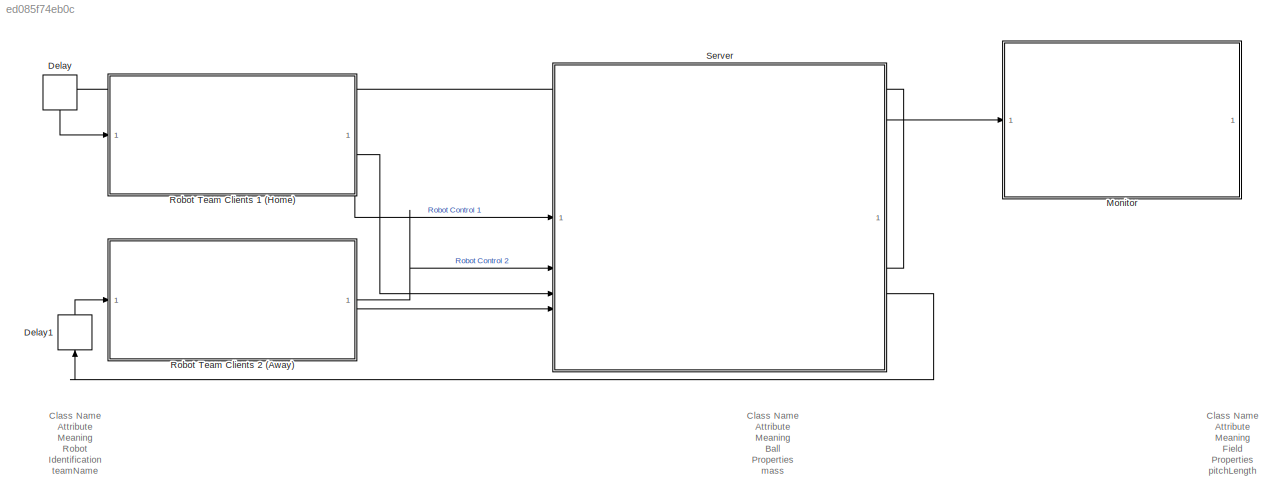
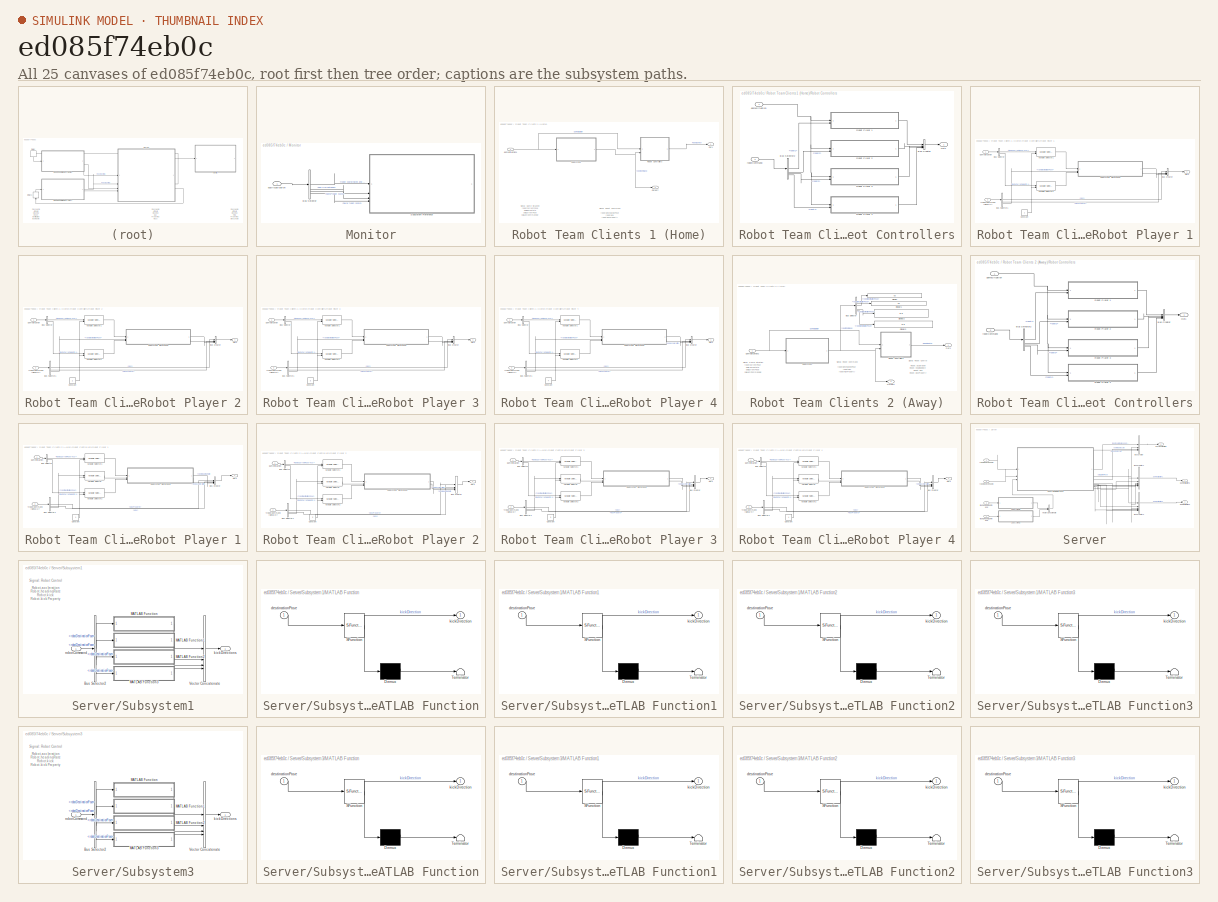
[diagram: thumbnail index - all 25 canvases of the model, root first then tree order]
MODEL slx_ed085f74eb0c
KIND model
CONFIG AbsTol = auto
CONFIG EnableMultiTasking = off
CONFIG FixedStep = 0.5
CONFIG MaxStep = auto
CONFIG MinStep = auto
CONFIG RelTol = 1e-3
CONFIG SampleTimeConstraint = Unconstrained
CONFIG SolverName = FixedStepAuto
CONFIG StartTime = 0.0
CONFIG StopTime = inf
BLOCK [Delay] Delay
  DelayLength = 1
  InputPortMap = u0
  NameLocation = left
BLOCK [Delay] Delay1
  DelayLength = 1
  InputPortMap = u0
  NameLocation = right
BLOCK [SubSystem] Monitor
BLOCK [BusSelector] Monitor/Bus Selector
  OutputSignals = robot coordinates and heading,ballCurrentPose,home team score,away team score
BLOCK [SubSystem] Monitor/Subsystem Reference
  ReferencedSubsystem = Monitor_Subsystem
BLOCK [Inport] Monitor/busVisualisation
BLOCK [SubSystem] Robot Team Clients 1 (Home)
BLOCK [Outport] Robot Team Clients 1 (Home)/Out1
BLOCK [Outport] Robot Team Clients 1 (Home)/Outport
  Port = 2
BLOCK [SubSystem] Robot Team Clients 1 (Home)/Robot Controllers
BLOCK [BusCreator] Robot Team Clients 1 (Home)/Robot Controllers/Bus Creator
  DisplayOption = bar
  InheritFromInputs = on
  Inputs = 4
BLOCK [BusSelector] Robot Team Clients 1 (Home)/Robot Controllers/Bus Selector2
  OutputSignals = robot1,robot2,robot3,robot4
BLOCK [Outport] Robot Team Clients 1 (Home)/Robot Controllers/Out1
BLOCK [SubSystem] Robot Team Clients 1 (Home)/Robot Controllers/Robot Player 1
BLOCK [Inport] Robot Team Clients 1 (Home)/Robot Controllers/Robot Player 1/<robotCommand (signal 1)>
  Port = 2
BLOCK [BusCreator] Robot Team Clients 1 (Home)/Robot Controllers/Robot Player 1/Bus Creator
  DisplayOption = bar
  InheritFromInputs = on
  Inputs = 4
  OutDataTypeStr = Bus: robotControl
BLOCK [BusSelector] Robot Team Clients 1 (Home)/Robot Controllers/Robot Player 1/Bus Selector
  OutputSignals = team1CurrentPose(4x3),team1CurrentVelocity(4x1)
BLOCK [BusSelector] Robot Team Clients 1 (Home)/Robot Controllers/Robot Player 1/Bus Selector1
  OutputSignals = kick,kickProperty,robotDestinationPose
BLOCK [Constant] Robot Team Clients 1 (Home)/Robot Controllers/Robot Player 1/Constant
BLOCK [Outport] Robot Team Clients 1 (Home)/Robot Controllers/Robot Player 1/Out1
BLOCK [SubSystem] Robot Team Clients 1 (Home)/Robot Controllers/Robot Player 1/Subsystem Reference
  ReferencedSubsystem = Controller_Subsystem
BLOCK [Reference] Robot Team Clients 1 (Home)/Robot Controllers/Robot Player 1/Variable Selector1  REF=dspindex/Variable
Selector
  LibrarySourceBlock = dsphdlsupportsigmgmt/Variable\nSelector
  SourceBlock = dspindex/Variable\nSelector
  SourceType = Variable Selector
BLOCK [Reference] Robot Team Clients 1 (Home)/Robot Controllers/Robot Player 1/Variable Selector2  REF=dspindex/Variable
Selector
  LibrarySourceBlock = dsphdlsupportsigmgmt/Variable\nSelector
  SourceBlock = dspindex/Variable\nSelector
  SourceType = Variable Selector
BLOCK [Inport] Robot Team Clients 1 (Home)/Robot Controllers/Robot Player 1/gameSituation
BLOCK [SubSystem] Robot Team Clients 1 (Home)/Robot Controllers/Robot Player 2
BLOCK [Inport] Robot Team Clients 1 (Home)/Robot Controllers/Robot Player 2/<robotCommand (signal 2)>
  Port = 2
BLOCK [BusCreator] Robot Team Clients 1 (Home)/Robot Controllers/Robot Player 2/Bus Creator
  DisplayOption = bar
  InheritFromInputs = on
  Inputs = 4
  OutDataTypeStr = Bus: robotControl
BLOCK [BusSelector] Robot Team Clients 1 (Home)/Robot Controllers/Robot Player 2/Bus Selector
  OutputSignals = team1CurrentPose(4x3),team1CurrentVelocity(4x1)
BLOCK [BusSelector] Robot Team Clients 1 (Home)/Robot Controllers/Robot Player 2/Bus Selector1
  OutputSignals = kick,kickProperty,robotDestinationPose
BLOCK [Constant] Robot Team Clients 1 (Home)/Robot Controllers/Robot Player 2/Constant
  Value = 2
BLOCK [Outport] Robot Team Clients 1 (Home)/Robot Controllers/Robot Player 2/Out1
BLOCK [SubSystem] Robot Team Clients 1 (Home)/Robot Controllers/Robot Player 2/Subsystem Reference
  ReferencedSubsystem = Controller_Subsystem
BLOCK [Reference] Robot Team Clients 1 (Home)/Robot Controllers/Robot Player 2/Variable Selector1  REF=dspindex/Variable
Selector
  LibrarySourceBlock = dsphdlsupportsigmgmt/Variable\nSelector
  SourceBlock = dspindex/Variable\nSelector
  SourceType = Variable Selector
BLOCK [Reference] Robot Team Clients 1 (Home)/Robot Controllers/Robot Player 2/Variable Selector2  REF=dspindex/Variable
Selector
  LibrarySourceBlock = dsphdlsupportsigmgmt/Variable\nSelector
  SourceBlock = dspindex/Variable\nSelector
  SourceType = Variable Selector
BLOCK [Inport] Robot Team Clients 1 (Home)/Robot Controllers/Robot Player 2/gameSituation
BLOCK [SubSystem] Robot Team Clients 1 (Home)/Robot Controllers/Robot Player 3
BLOCK [Inport] Robot Team Clients 1 (Home)/Robot Controllers/Robot Player 3/<robotCommand (signal 3)>
  Port = 2
BLOCK [BusCreator] Robot Team Clients 1 (Home)/Robot Controllers/Robot Player 3/Bus Creator
  DisplayOption = bar
  InheritFromInputs = on
  Inputs = 4
  OutDataTypeStr = Bus: robotControl
BLOCK [BusSelector] Robot Team Clients 1 (Home)/Robot Controllers/Robot Player 3/Bus Selector
  OutputSignals = team1CurrentPose(4x3),team1CurrentVelocity(4x1)
BLOCK [BusSelector] Robot Team Clients 1 (Home)/Robot Controllers/Robot Player 3/Bus Selector1
  OutputSignals = kick,kickProperty,robotDestinationPose
BLOCK [Constant] Robot Team Clients 1 (Home)/Robot Controllers/Robot Player 3/Constant
  Value = 3
BLOCK [Outport] Robot Team Clients 1 (Home)/Robot Controllers/Robot Player 3/Out1
BLOCK [SubSystem] Robot Team Clients 1 (Home)/Robot Controllers/Robot Player 3/Subsystem Reference
  ReferencedSubsystem = Controller_Subsystem
BLOCK [Reference] Robot Team Clients 1 (Home)/Robot Controllers/Robot Player 3/Variable Selector1  REF=dspindex/Variable
Selector
  LibrarySourceBlock = dsphdlsupportsigmgmt/Variable\nSelector
  SourceBlock = dspindex/Variable\nSelector
  SourceType = Variable Selector
BLOCK [Reference] Robot Team Clients 1 (Home)/Robot Controllers/Robot Player 3/Variable Selector2  REF=dspindex/Variable
Selector
  LibrarySourceBlock = dsphdlsupportsigmgmt/Variable\nSelector
  SourceBlock = dspindex/Variable\nSelector
  SourceType = Variable Selector
BLOCK [Inport] Robot Team Clients 1 (Home)/Robot Controllers/Robot Player 3/gameSituation
BLOCK [SubSystem] Robot Team Clients 1 (Home)/Robot Controllers/Robot Player 4
BLOCK [Inport] Robot Team Clients 1 (Home)/Robot Controllers/Robot Player 4/<robotCommand (signal 4)>
  Port = 2
BLOCK [BusCreator] Robot Team Clients 1 (Home)/Robot Controllers/Robot Player 4/Bus Creator
  DisplayOption = bar
  InheritFromInputs = on
  Inputs = 4
  OutDataTypeStr = Bus: robotControl
BLOCK [BusSelector] Robot Team Clients 1 (Home)/Robot Controllers/Robot Player 4/Bus Selector
  OutputSignals = team1CurrentPose(4x3),team1CurrentVelocity(4x1)
BLOCK [BusSelector] Robot Team Clients 1 (Home)/Robot Controllers/Robot Player 4/Bus Selector1
  OutputSignals = kick,kickProperty,robotDestinationPose
BLOCK [Constant] Robot Team Clients 1 (Home)/Robot Controllers/Robot Player 4/Constant
  Value = 4
BLOCK [Outport] Robot Team Clients 1 (Home)/Robot Controllers/Robot Player 4/Out1
BLOCK [SubSystem] Robot Team Clients 1 (Home)/Robot Controllers/Robot Player 4/Subsystem Reference
  ReferencedSubsystem = Controller_Subsystem
BLOCK [Reference] Robot Team Clients 1 (Home)/Robot Controllers/Robot Player 4/Variable Selector1  REF=dspindex/Variable
Selector
  LibrarySourceBlock = dsphdlsupportsigmgmt/Variable\nSelector
  SourceBlock = dspindex/Variable\nSelector
  SourceType = Variable Selector
BLOCK [Reference] Robot Team Clients 1 (Home)/Robot Controllers/Robot Player 4/Variable Selector2  REF=dspindex/Variable
Selector
  LibrarySourceBlock = dsphdlsupportsigmgmt/Variable\nSelector
  SourceBlock = dspindex/Variable\nSelector
  SourceType = Variable Selector
BLOCK [Inport] Robot Team Clients 1 (Home)/Robot Controllers/Robot Player 4/gameSituation
BLOCK [Inport] Robot Team Clients 1 (Home)/Robot Controllers/gameSituation
BLOCK [Inport] Robot Team Clients 1 (Home)/Robot Controllers/robotCommand
  Port = 2
BLOCK [SubSystem] Robot Team Clients 1 (Home)/Subsystem
  ReferencedSubsystem = Guidance_Team1
BLOCK [Inport] Robot Team Clients 1 (Home)/gameSituation1
  OutDataTypeStr = Bus: gameSituation
BLOCK [SubSystem] Robot Team Clients 2 (Away)
BLOCK [BusSelector] Robot Team Clients 2 (Away)/Bus Selector
  OutputSignals = robot1.robotDestinationPose,robot2.robotDestinationPose,robot3.robotDestinationPose,robot4.robotDestinationPose
BLOCK [Display] Robot Team Clients 2 (Away)/Display
  Decimation = 1
BLOCK [Display] Robot Team Clients 2 (Away)/Display1
  Decimation = 1
BLOCK [Display] Robot Team Clients 2 (Away)/Display2
  Decimation = 1
BLOCK [Display] Robot Team Clients 2 (Away)/Display3
  Decimation = 1
BLOCK [Outport] Robot Team Clients 2 (Away)/Out1
BLOCK [Outport] Robot Team Clients 2 (Away)/Outport
  Port = 2
BLOCK [SubSystem] Robot Team Clients 2 (Away)/Robot Controllers
BLOCK [BusCreator] Robot Team Clients 2 (Away)/Robot Controllers/Bus Creator
  DisplayOption = bar
  InheritFromInputs = on
  Inputs = 4
BLOCK [BusSelector] Robot Team Clients 2 (Away)/Robot Controllers/Bus Selector2
  OutputSignals = robot1,robot2,robot3,robot4
BLOCK [Outport] Robot Team Clients 2 (Away)/Robot Controllers/Out1
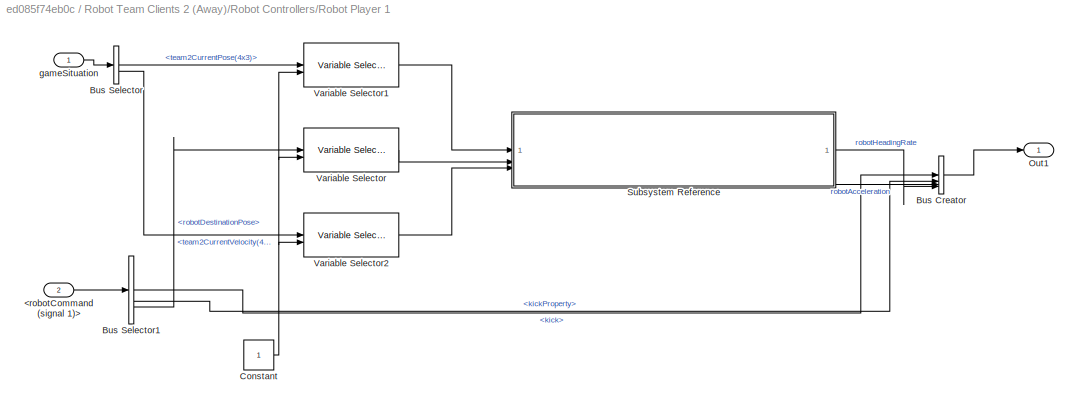
BLOCK [SubSystem] Robot Team Clients 2 (Away)/Robot Controllers/Robot Player 1
BLOCK [Inport] Robot Team Clients 2 (Away)/Robot Controllers/Robot Player 1/<robotCommand (signal 1)>
  Port = 2
BLOCK [BusCreator] Robot Team Clients 2 (Away)/Robot Controllers/Robot Player 1/Bus Creator
  DisplayOption = bar
  InheritFromInputs = on
  Inputs = 4
  OutDataTypeStr = Bus: robotControl
BLOCK [BusSelector] Robot Team Clients 2 (Away)/Robot Controllers/Robot Player 1/Bus Selector
  OutputSignals = team2CurrentPose(4x3),team2CurrentVelocity(4x1)
BLOCK [BusSelector] Robot Team Clients 2 (Away)/Robot Controllers/Robot Player 1/Bus Selector1
  OutputSignals = kick,kickProperty,robotDestinationPose
BLOCK [Constant] Robot Team Clients 2 (Away)/Robot Controllers/Robot Player 1/Constant
BLOCK [Outport] Robot Team Clients 2 (Away)/Robot Controllers/Robot Player 1/Out1
BLOCK [SubSystem] Robot Team Clients 2 (Away)/Robot Controllers/Robot Player 1/Subsystem Reference
  ReferencedSubsystem = Controller_Subsystem
BLOCK [Reference] Robot Team Clients 2 (Away)/Robot Controllers/Robot Player 1/Variable Selector  REF=dspindex/Variable
Selector
  LibrarySourceBlock = dsphdlsupportsigmgmt/Variable\nSelector
  SourceBlock = dspindex/Variable\nSelector
  SourceType = Variable Selector
BLOCK [Reference] Robot Team Clients 2 (Away)/Robot Controllers/Robot Player 1/Variable Selector1  REF=dspindex/Variable
Selector
  LibrarySourceBlock = dsphdlsupportsigmgmt/Variable\nSelector
  SourceBlock = dspindex/Variable\nSelector
  SourceType = Variable Selector
BLOCK [Reference] Robot Team Clients 2 (Away)/Robot Controllers/Robot Player 1/Variable Selector2  REF=dspindex/Variable
Selector
  LibrarySourceBlock = dsphdlsupportsigmgmt/Variable\nSelector
  SourceBlock = dspindex/Variable\nSelector
  SourceType = Variable Selector
BLOCK [Inport] Robot Team Clients 2 (Away)/Robot Controllers/Robot Player 1/gameSituation
BLOCK [SubSystem] Robot Team Clients 2 (Away)/Robot Controllers/Robot Player 2
BLOCK [Inport] Robot Team Clients 2 (Away)/Robot Controllers/Robot Player 2/<robotCommand (signal 2)>
  Port = 2
BLOCK [BusCreator] Robot Team Clients 2 (Away)/Robot Controllers/Robot Player 2/Bus Creator
  DisplayOption = bar
  InheritFromInputs = on
  Inputs = 4
  OutDataTypeStr = Bus: robotControl
BLOCK [BusSelector] Robot Team Clients 2 (Away)/Robot Controllers/Robot Player 2/Bus Selector
  OutputSignals = team2CurrentPose(4x3),team2CurrentVelocity(4x1)
BLOCK [BusSelector] Robot Team Clients 2 (Away)/Robot Controllers/Robot Player 2/Bus Selector1
  OutputSignals = kick,kickProperty,robotDestinationPose
BLOCK [Constant] Robot Team Clients 2 (Away)/Robot Controllers/Robot Player 2/Constant
  Value = 2
BLOCK [Outport] Robot Team Clients 2 (Away)/Robot Controllers/Robot Player 2/Out1
BLOCK [SubSystem] Robot Team Clients 2 (Away)/Robot Controllers/Robot Player 2/Subsystem Reference
  ReferencedSubsystem = Controller_Subsystem
BLOCK [Reference] Robot Team Clients 2 (Away)/Robot Controllers/Robot Player 2/Variable Selector  REF=dspindex/Variable
Selector
  LibrarySourceBlock = dsphdlsupportsigmgmt/Variable\nSelector
  SourceBlock = dspindex/Variable\nSelector
  SourceType = Variable Selector
BLOCK [Reference] Robot Team Clients 2 (Away)/Robot Controllers/Robot Player 2/Variable Selector1  REF=dspindex/Variable
Selector
  LibrarySourceBlock = dsphdlsupportsigmgmt/Variable\nSelector
  SourceBlock = dspindex/Variable\nSelector
  SourceType = Variable Selector
BLOCK [Reference] Robot Team Clients 2 (Away)/Robot Controllers/Robot Player 2/Variable Selector2  REF=dspindex/Variable
Selector
  LibrarySourceBlock = dsphdlsupportsigmgmt/Variable\nSelector
  SourceBlock = dspindex/Variable\nSelector
  SourceType = Variable Selector
BLOCK [Inport] Robot Team Clients 2 (Away)/Robot Controllers/Robot Player 2/gameSituation
BLOCK [SubSystem] Robot Team Clients 2 (Away)/Robot Controllers/Robot Player 3
BLOCK [Inport] Robot Team Clients 2 (Away)/Robot Controllers/Robot Player 3/<robotCommand (signal 3)>
  Port = 2
BLOCK [BusCreator] Robot Team Clients 2 (Away)/Robot Controllers/Robot Player 3/Bus Creator
  DisplayOption = bar
  InheritFromInputs = on
  Inputs = 4
  OutDataTypeStr = Bus: robotControl
BLOCK [BusSelector] Robot Team Clients 2 (Away)/Robot Controllers/Robot Player 3/Bus Selector
  OutputSignals = team2CurrentPose(4x3),team2CurrentVelocity(4x1)
BLOCK [BusSelector] Robot Team Clients 2 (Away)/Robot Controllers/Robot Player 3/Bus Selector1
  OutputSignals = kick,kickProperty,robotDestinationPose
BLOCK [Constant] Robot Team Clients 2 (Away)/Robot Controllers/Robot Player 3/Constant
  Value = 3
BLOCK [Outport] Robot Team Clients 2 (Away)/Robot Controllers/Robot Player 3/Out1
BLOCK [SubSystem] Robot Team Clients 2 (Away)/Robot Controllers/Robot Player 3/Subsystem Reference
  ReferencedSubsystem = Controller_Subsystem
BLOCK [Reference] Robot Team Clients 2 (Away)/Robot Controllers/Robot Player 3/Variable Selector  REF=dspindex/Variable
Selector
  LibrarySourceBlock = dsphdlsupportsigmgmt/Variable\nSelector
  SourceBlock = dspindex/Variable\nSelector
  SourceType = Variable Selector
BLOCK [Reference] Robot Team Clients 2 (Away)/Robot Controllers/Robot Player 3/Variable Selector1  REF=dspindex/Variable
Selector
  LibrarySourceBlock = dsphdlsupportsigmgmt/Variable\nSelector
  SourceBlock = dspindex/Variable\nSelector
  SourceType = Variable Selector
BLOCK [Reference] Robot Team Clients 2 (Away)/Robot Controllers/Robot Player 3/Variable Selector2  REF=dspindex/Variable
Selector
  LibrarySourceBlock = dsphdlsupportsigmgmt/Variable\nSelector
  SourceBlock = dspindex/Variable\nSelector
  SourceType = Variable Selector
BLOCK [Inport] Robot Team Clients 2 (Away)/Robot Controllers/Robot Player 3/gameSituation
BLOCK [SubSystem] Robot Team Clients 2 (Away)/Robot Controllers/Robot Player 4
BLOCK [Inport] Robot Team Clients 2 (Away)/Robot Controllers/Robot Player 4/<robotCommand (signal 4)>
  Port = 2
BLOCK [BusCreator] Robot Team Clients 2 (Away)/Robot Controllers/Robot Player 4/Bus Creator
  DisplayOption = bar
  InheritFromInputs = on
  Inputs = 4
  OutDataTypeStr = Bus: robotControl
BLOCK [BusSelector] Robot Team Clients 2 (Away)/Robot Controllers/Robot Player 4/Bus Selector
  OutputSignals = team2CurrentPose(4x3),team2CurrentVelocity(4x1)
BLOCK [BusSelector] Robot Team Clients 2 (Away)/Robot Controllers/Robot Player 4/Bus Selector1
  OutputSignals = kick,kickProperty,robotDestinationPose
BLOCK [Constant] Robot Team Clients 2 (Away)/Robot Controllers/Robot Player 4/Constant
  Value = 4
BLOCK [Outport] Robot Team Clients 2 (Away)/Robot Controllers/Robot Player 4/Out1
BLOCK [SubSystem] Robot Team Clients 2 (Away)/Robot Controllers/Robot Player 4/Subsystem Reference
  ReferencedSubsystem = Controller_Subsystem
BLOCK [Reference] Robot Team Clients 2 (Away)/Robot Controllers/Robot Player 4/Variable Selector  REF=dspindex/Variable
Selector
  LibrarySourceBlock = dsphdlsupportsigmgmt/Variable\nSelector
  SourceBlock = dspindex/Variable\nSelector
  SourceType = Variable Selector
BLOCK [Reference] Robot Team Clients 2 (Away)/Robot Controllers/Robot Player 4/Variable Selector1  REF=dspindex/Variable
Selector
  LibrarySourceBlock = dsphdlsupportsigmgmt/Variable\nSelector
  SourceBlock = dspindex/Variable\nSelector
  SourceType = Variable Selector
BLOCK [Reference] Robot Team Clients 2 (Away)/Robot Controllers/Robot Player 4/Variable Selector2  REF=dspindex/Variable
Selector
  LibrarySourceBlock = dsphdlsupportsigmgmt/Variable\nSelector
  SourceBlock = dspindex/Variable\nSelector
  SourceType = Variable Selector
BLOCK [Inport] Robot Team Clients 2 (Away)/Robot Controllers/Robot Player 4/gameSituation
BLOCK [Inport] Robot Team Clients 2 (Away)/Robot Controllers/gameSituation
BLOCK [Inport] Robot Team Clients 2 (Away)/Robot Controllers/robotCommand
  Port = 2
BLOCK [SubSystem] Robot Team Clients 2 (Away)/Subsystem
  ReferencedSubsystem = Guidance_Team2
BLOCK [Inport] Robot Team Clients 2 (Away)/gameSituation2
  OutDataTypeStr = Bus:gameSituation
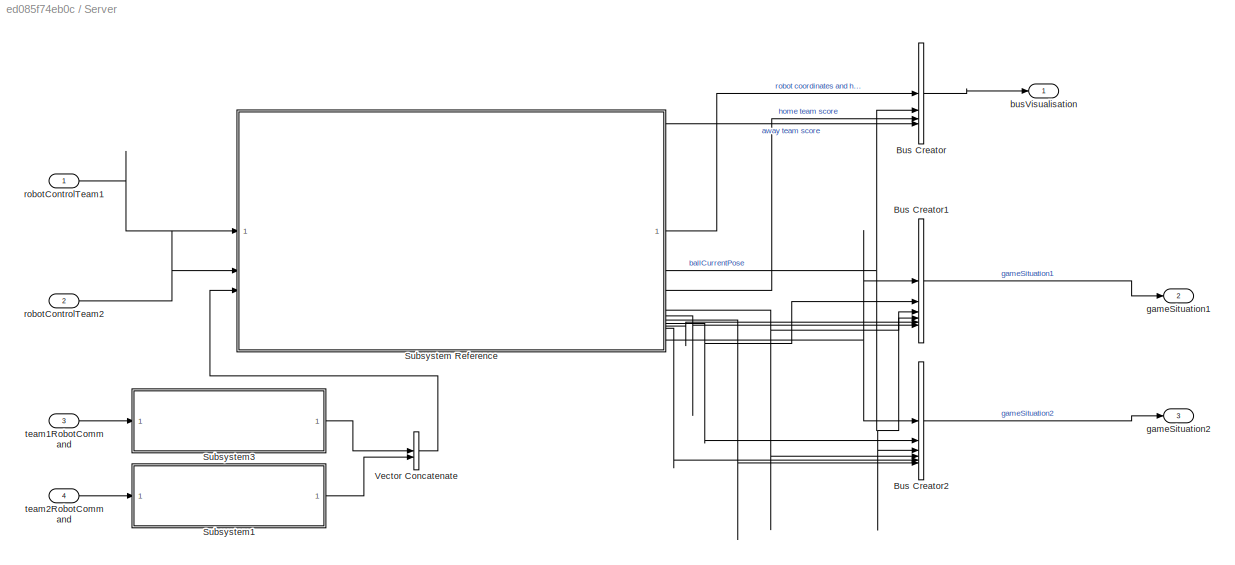
BLOCK [SubSystem] Server
BLOCK [BusCreator] Server/Bus Creator
  DisplayOption = bar
  InheritFromInputs = on
  Inputs = 4
BLOCK [BusCreator] Server/Bus Creator1
  DisplayOption = bar
  InheritFromInputs = on
  Inputs = 6
  OutDataTypeStr = Bus: gameSituation
BLOCK [BusCreator] Server/Bus Creator2
  DisplayOption = bar
  InheritFromInputs = on
  Inputs = 6
  OutDataTypeStr = Bus: gameSituation
BLOCK [SubSystem] Server/Subsystem Reference
  ReferencedSubsystem = Server_sub
BLOCK [SubSystem] Server/Subsystem1
BLOCK [BusSelector] Server/Subsystem1/Bus Selector2
  OutputSignals = robot1.robotDestinationPose,robot2.robotDestinationPose,robot3.robotDestinationPose,robot4.robotDestinationPose
BLOCK [SubSystem] Server/Subsystem1/MATLAB Function
  ErrorFcn = Stateflow.Translate.translate
  LibrarySourceBlock = simulink/User-Defined\nFunctions/MATLAB Function
  PermitHierarchicalResolution = ExplicitOnly
  SFBlockType = MATLAB Function
  TreatAsAtomicUnit = on
BLOCK [Demux] Server/Subsystem1/MATLAB Function/ Demux 
  Outputs = 1
BLOCK [S-Function] Server/Subsystem1/MATLAB Function/ SFunction 
  EnableBusSupport = on
  FunctionName = sf_sfun
  PortCounts = [1 2]
  SFcnIsStateOwnerBlock = off
  SFunctionDeploymentMode = off
  Tag = Stateflow S-Function 45
BLOCK [Terminator] Server/Subsystem1/MATLAB Function/ Terminator 
BLOCK [Inport] Server/Subsystem1/MATLAB Function/destinationPose
BLOCK [Outport] Server/Subsystem1/MATLAB Function/kickDirection
BLOCK [SubSystem] Server/Subsystem1/MATLAB Function1
  ErrorFcn = Stateflow.Translate.translate
  LibrarySourceBlock = simulink/User-Defined\nFunctions/MATLAB Function
  PermitHierarchicalResolution = ExplicitOnly
  SFBlockType = MATLAB Function
  TreatAsAtomicUnit = on
BLOCK [Demux] Server/Subsystem1/MATLAB Function1/ Demux 
  Outputs = 1
BLOCK [S-Function] Server/Subsystem1/MATLAB Function1/ SFunction 
  EnableBusSupport = on
  FunctionName = sf_sfun
  PortCounts = [1 2]
  SFcnIsStateOwnerBlock = off
  SFunctionDeploymentMode = off
  Tag = Stateflow S-Function 46
BLOCK [Terminator] Server/Subsystem1/MATLAB Function1/ Terminator 
BLOCK [Inport] Server/Subsystem1/MATLAB Function1/destinationPose
BLOCK [Outport] Server/Subsystem1/MATLAB Function1/kickDirection
BLOCK [SubSystem] Server/Subsystem1/MATLAB Function2
  ErrorFcn = Stateflow.Translate.translate
  LibrarySourceBlock = simulink/User-Defined\nFunctions/MATLAB Function
  PermitHierarchicalResolution = ExplicitOnly
  SFBlockType = MATLAB Function
  TreatAsAtomicUnit = on
BLOCK [Demux] Server/Subsystem1/MATLAB Function2/ Demux 
  Outputs = 1
BLOCK [S-Function] Server/Subsystem1/MATLAB Function2/ SFunction 
  EnableBusSupport = on
  FunctionName = sf_sfun
  PortCounts = [1 2]
  SFcnIsStateOwnerBlock = off
  SFunctionDeploymentMode = off
  Tag = Stateflow S-Function 47
BLOCK [Terminator] Server/Subsystem1/MATLAB Function2/ Terminator 
BLOCK [Inport] Server/Subsystem1/MATLAB Function2/destinationPose
BLOCK [Outport] Server/Subsystem1/MATLAB Function2/kickDirection
BLOCK [SubSystem] Server/Subsystem1/MATLAB Function3
  ErrorFcn = Stateflow.Translate.translate
  LibrarySourceBlock = simulink/User-Defined\nFunctions/MATLAB Function
  PermitHierarchicalResolution = ExplicitOnly
  SFBlockType = MATLAB Function
  TreatAsAtomicUnit = on
BLOCK [Demux] Server/Subsystem1/MATLAB Function3/ Demux 
  Outputs = 1
BLOCK [S-Function] Server/Subsystem1/MATLAB Function3/ SFunction 
  EnableBusSupport = on
  FunctionName = sf_sfun
  PortCounts = [1 2]
  SFcnIsStateOwnerBlock = off
  SFunctionDeploymentMode = off
  Tag = Stateflow S-Function 48
BLOCK [Terminator] Server/Subsystem1/MATLAB Function3/ Terminator 
BLOCK [Inport] Server/Subsystem1/MATLAB Function3/destinationPose
BLOCK [Outport] Server/Subsystem1/MATLAB Function3/kickDirection
BLOCK [Concatenate] Server/Subsystem1/Vector Concatenate
  NumInputs = 4
BLOCK [Outport] Server/Subsystem1/kickDirections
BLOCK [Inport] Server/Subsystem1/robotCommand
BLOCK [SubSystem] Server/Subsystem3
BLOCK [BusSelector] Server/Subsystem3/Bus Selector2
  OutputSignals = robot1.robotDestinationPose,robot2.robotDestinationPose,robot3.robotDestinationPose,robot4.robotDestinationPose
BLOCK [SubSystem] Server/Subsystem3/MATLAB Function
  ErrorFcn = Stateflow.Translate.translate
  LibrarySourceBlock = simulink/User-Defined\nFunctions/MATLAB Function
  PermitHierarchicalResolution = ExplicitOnly
  SFBlockType = MATLAB Function
  TreatAsAtomicUnit = on
BLOCK [Demux] Server/Subsystem3/MATLAB Function/ Demux 
  Outputs = 1
BLOCK [S-Function] Server/Subsystem3/MATLAB Function/ SFunction 
  EnableBusSupport = on
  FunctionName = sf_sfun
  PortCounts = [1 2]
  SFcnIsStateOwnerBlock = off
  SFunctionDeploymentMode = off
  Tag = Stateflow S-Function 41
BLOCK [Terminator] Server/Subsystem3/MATLAB Function/ Terminator 
BLOCK [Inport] Server/Subsystem3/MATLAB Function/destinationPose
BLOCK [Outport] Server/Subsystem3/MATLAB Function/kickDirection
BLOCK [SubSystem] Server/Subsystem3/MATLAB Function1
  ErrorFcn = Stateflow.Translate.translate
  LibrarySourceBlock = simulink/User-Defined\nFunctions/MATLAB Function
  PermitHierarchicalResolution = ExplicitOnly
  SFBlockType = MATLAB Function
  TreatAsAtomicUnit = on
BLOCK [Demux] Server/Subsystem3/MATLAB Function1/ Demux 
  Outputs = 1
BLOCK [S-Function] Server/Subsystem3/MATLAB Function1/ SFunction 
  EnableBusSupport = on
  FunctionName = sf_sfun
  PortCounts = [1 2]
  SFcnIsStateOwnerBlock = off
  SFunctionDeploymentMode = off
  Tag = Stateflow S-Function 42
BLOCK [Terminator] Server/Subsystem3/MATLAB Function1/ Terminator 
BLOCK [Inport] Server/Subsystem3/MATLAB Function1/destinationPose
BLOCK [Outport] Server/Subsystem3/MATLAB Function1/kickDirection
BLOCK [SubSystem] Server/Subsystem3/MATLAB Function2
  ErrorFcn = Stateflow.Translate.translate
  LibrarySourceBlock = simulink/User-Defined\nFunctions/MATLAB Function
  PermitHierarchicalResolution = ExplicitOnly
  SFBlockType = MATLAB Function
  TreatAsAtomicUnit = on
BLOCK [Demux] Server/Subsystem3/MATLAB Function2/ Demux 
  Outputs = 1
BLOCK [S-Function] Server/Subsystem3/MATLAB Function2/ SFunction 
  EnableBusSupport = on
  FunctionName = sf_sfun
  PortCounts = [1 2]
  SFcnIsStateOwnerBlock = off
  SFunctionDeploymentMode = off
  Tag = Stateflow S-Function 43
BLOCK [Terminator] Server/Subsystem3/MATLAB Function2/ Terminator 
BLOCK [Inport] Server/Subsystem3/MATLAB Function2/destinationPose
BLOCK [Outport] Server/Subsystem3/MATLAB Function2/kickDirection
BLOCK [SubSystem] Server/Subsystem3/MATLAB Function3
  ErrorFcn = Stateflow.Translate.translate
  LibrarySourceBlock = simulink/User-Defined\nFunctions/MATLAB Function
  PermitHierarchicalResolution = ExplicitOnly
  SFBlockType = MATLAB Function
  TreatAsAtomicUnit = on
BLOCK [Demux] Server/Subsystem3/MATLAB Function3/ Demux 
  Outputs = 1
BLOCK [S-Function] Server/Subsystem3/MATLAB Function3/ SFunction 
  EnableBusSupport = on
  FunctionName = sf_sfun
  PortCounts = [1 2]
  SFcnIsStateOwnerBlock = off
  SFunctionDeploymentMode = off
  Tag = Stateflow S-Function 44
BLOCK [Terminator] Server/Subsystem3/MATLAB Function3/ Terminator 
BLOCK [Inport] Server/Subsystem3/MATLAB Function3/destinationPose
BLOCK [Outport] Server/Subsystem3/MATLAB Function3/kickDirection
BLOCK [Concatenate] Server/Subsystem3/Vector Concatenate
  NumInputs = 4
BLOCK [Outport] Server/Subsystem3/kickDirections
BLOCK [Inport] Server/Subsystem3/robotCommand
BLOCK [Concatenate] Server/Vector Concatenate
BLOCK [Outport] Server/busVisualisation
BLOCK [Outport] Server/gameSituation1
  Port = 2
BLOCK [Outport] Server/gameSituation2
  Port = 3
BLOCK [Inport] Server/robotControlTeam1
BLOCK [Inport] Server/robotControlTeam2
  Port = 2
BLOCK [Inport] Server/team1RobotCommand
  Port = 3
BLOCK [Inport] Server/team2RobotCommand
  Port = 4
ANNOTATION (root): Class Name Attribute Meaning Field Properties pitchLength in mm pitchWidth in mm goalDepth in mm goalWidth in mm goalHeight in mm goalAreaLength in mm goalAreaWidth in mm penaltyMarkPosition in mm centreCircleRadius in mm borderStripWidth in mm penalthAreaLength in mm penaltyAreaWidth in mm Statistics homeTeamScore int awayTeamScore int
ANNOTATION (root): Class Name Attribute Meaning Ball Properties mass mass of ball fricCoeff friction wrt ground radius radius of ball Command accleration 0.01 - 1 m/s^2 heading 1 - 360 deg Status currentPose x, y, angle currentSpeed 0.01 - 10 m/s lastCommandBy (teamName, robotName) isFoul True/False gameState 0 = pause/stop 1 = normal 2 = freeKick 3 = cornerKick 4 = goalieFreeKick 5 = kickIn 6 = penalty
ANNOTATION (root): Class Name Attribute Meaning Robot Identification teamName 'Home' & 'Away' robotName robot_1 to robot_n robotRole Attacker/Defender/GoalKeeper Properties bodyRadius Size of Robot weight KickableAreaRadius Size of Kickable Area maxMoveAccerleration maxTurnRate maxKickPower (Force - N) Robot Movement currentPose x, y, angle destinationPose x, y, angle acceleration 0.01 - 1 m/s^2 (negative as well) h...<+135ch>
ANNOTATION Robot Team Clients 1 (Home): Signal: Game Situation robotCurrentPose ballGameState ballCurrentPose ballLastCommandBy
ANNOTATION Robot Team Clients 1 (Home): Signal: Robot Command robotDestinationPose robotKick robotKickProperty
ANNOTATION Robot Team Clients 2 (Away): Signal: Game Situation robotCurrentPose ballGameState ballCurrentPose ballLastCommandBy
ANNOTATION Robot Team Clients 2 (Away): Signal: Robot Command robotDestinationPose robotKick robotKickProperty
ANNOTATION Robot Team Clients 2 (Away): Signal: Robot Control Robot.accleration Robot.headingRate Robot.kick Robot.kickProperty
ANNOTATION Server/Subsystem1: Signal: Robot Control Robot.accleration Robot.headingRate Robot.kick Robot.kickProperty
ANNOTATION Server/Subsystem3: Signal: Robot Control Robot.accleration Robot.headingRate Robot.kick Robot.kickProperty
LINE Delay1:1 -> Robot Team Clients 2 (Away):1
LINE Delay:1 -> Robot Team Clients 1 (Home):1
LINE Monitor/Bus Selector:1 -> Monitor/Subsystem Reference:1
LINE Monitor/Bus Selector:2 -> Monitor/Subsystem Reference:2
LINE Monitor/Bus Selector:3 -> Monitor/Subsystem Reference:3
LINE Monitor/Bus Selector:4 -> Monitor/Subsystem Reference:4
LINE Monitor/busVisualisation:1 -> Monitor/Bus Selector:1
LINE Robot Team Clients 1 (Home)/Robot Controllers/Bus Creator:1 -> Robot Team Clients 1 (Home)/Robot Controllers/Out1:1
LINE Robot Team Clients 1 (Home)/Robot Controllers/Bus Selector2:1 -> Robot Team Clients 1 (Home)/Robot Controllers/Robot Player 1:2
LINE Robot Team Clients 1 (Home)/Robot Controllers/Bus Selector2:2 -> Robot Team Clients 1 (Home)/Robot Controllers/Robot Player 2:2
LINE Robot Team Clients 1 (Home)/Robot Controllers/Bus Selector2:3 -> Robot Team Clients 1 (Home)/Robot Controllers/Robot Player 3:2
LINE Robot Team Clients 1 (Home)/Robot Controllers/Bus Selector2:4 -> Robot Team Clients 1 (Home)/Robot Controllers/Robot Player 4:2
LINE Robot Team Clients 1 (Home)/Robot Controllers/Robot Player 1/<robotCommand (signal 1)>:1 -> Robot Team Clients 1 (Home)/Robot Controllers/Robot Player 1/Bus Selector1:1
LINE Robot Team Clients 1 (Home)/Robot Controllers/Robot Player 1/Bus Creator:1 -> Robot Team Clients 1 (Home)/Robot Controllers/Robot Player 1/Out1:1
LINE Robot Team Clients 1 (Home)/Robot Controllers/Robot Player 1/Bus Selector1:1 -> Robot Team Clients 1 (Home)/Robot Controllers/Robot Player 1/Bus Creator:1
LINE Robot Team Clients 1 (Home)/Robot Controllers/Robot Player 1/Bus Selector1:2 -> Robot Team Clients 1 (Home)/Robot Controllers/Robot Player 1/Bus Creator:2
LINE Robot Team Clients 1 (Home)/Robot Controllers/Robot Player 1/Bus Selector1:3 -> Robot Team Clients 1 (Home)/Robot Controllers/Robot Player 1/Subsystem Reference:2
LINE Robot Team Clients 1 (Home)/Robot Controllers/Robot Player 1/Bus Selector:1 -> Robot Team Clients 1 (Home)/Robot Controllers/Robot Player 1/Variable Selector1:1
LINE Robot Team Clients 1 (Home)/Robot Controllers/Robot Player 1/Bus Selector:2 -> Robot Team Clients 1 (Home)/Robot Controllers/Robot Player 1/Variable Selector2:1
NET Robot Team Clients 1 (Home)/Robot Controllers/Robot Player 1/Constant:1 -> Robot Team Clients 1 (Home)/Robot Controllers/Robot Player 1/Variable Selector1:2, Robot Team Clients 1 (Home)/Robot Controllers/Robot Player 1/Variable Selector2:2
LINE Robot Team Clients 1 (Home)/Robot Controllers/Robot Player 1/Subsystem Reference:1 -> Robot Team Clients 1 (Home)/Robot Controllers/Robot Player 1/Bus Creator:4
LINE Robot Team Clients 1 (Home)/Robot Controllers/Robot Player 1/Subsystem Reference:2 -> Robot Team Clients 1 (Home)/Robot Controllers/Robot Player 1/Bus Creator:3
LINE Robot Team Clients 1 (Home)/Robot Controllers/Robot Player 1/Variable Selector1:1 -> Robot Team Clients 1 (Home)/Robot Controllers/Robot Player 1/Subsystem Reference:1
LINE Robot Team Clients 1 (Home)/Robot Controllers/Robot Player 1/Variable Selector2:1 -> Robot Team Clients 1 (Home)/Robot Controllers/Robot Player 1/Subsystem Reference:3
LINE Robot Team Clients 1 (Home)/Robot Controllers/Robot Player 1/gameSituation:1 -> Robot Team Clients 1 (Home)/Robot Controllers/Robot Player 1/Bus Selector:1
LINE Robot Team Clients 1 (Home)/Robot Controllers/Robot Player 1:1 -> Robot Team Clients 1 (Home)/Robot Controllers/Bus Creator:1
LINE Robot Team Clients 1 (Home)/Robot Controllers/Robot Player 2/<robotCommand (signal 2)>:1 -> Robot Team Clients 1 (Home)/Robot Controllers/Robot Player 2/Bus Selector1:1
LINE Robot Team Clients 1 (Home)/Robot Controllers/Robot Player 2/Bus Creator:1 -> Robot Team Clients 1 (Home)/Robot Controllers/Robot Player 2/Out1:1
LINE Robot Team Clients 1 (Home)/Robot Controllers/Robot Player 2/Bus Selector1:1 -> Robot Team Clients 1 (Home)/Robot Controllers/Robot Player 2/Bus Creator:1
LINE Robot Team Clients 1 (Home)/Robot Controllers/Robot Player 2/Bus Selector1:2 -> Robot Team Clients 1 (Home)/Robot Controllers/Robot Player 2/Bus Creator:2
LINE Robot Team Clients 1 (Home)/Robot Controllers/Robot Player 2/Bus Selector1:3 -> Robot Team Clients 1 (Home)/Robot Controllers/Robot Player 2/Subsystem Reference:2
LINE Robot Team Clients 1 (Home)/Robot Controllers/Robot Player 2/Bus Selector:1 -> Robot Team Clients 1 (Home)/Robot Controllers/Robot Player 2/Variable Selector1:1
LINE Robot Team Clients 1 (Home)/Robot Controllers/Robot Player 2/Bus Selector:2 -> Robot Team Clients 1 (Home)/Robot Controllers/Robot Player 2/Variable Selector2:1
NET Robot Team Clients 1 (Home)/Robot Controllers/Robot Player 2/Constant:1 -> Robot Team Clients 1 (Home)/Robot Controllers/Robot Player 2/Variable Selector1:2, Robot Team Clients 1 (Home)/Robot Controllers/Robot Player 2/Variable Selector2:2
LINE Robot Team Clients 1 (Home)/Robot Controllers/Robot Player 2/Subsystem Reference:1 -> Robot Team Clients 1 (Home)/Robot Controllers/Robot Player 2/Bus Creator:4
LINE Robot Team Clients 1 (Home)/Robot Controllers/Robot Player 2/Subsystem Reference:2 -> Robot Team Clients 1 (Home)/Robot Controllers/Robot Player 2/Bus Creator:3
LINE Robot Team Clients 1 (Home)/Robot Controllers/Robot Player 2/Variable Selector1:1 -> Robot Team Clients 1 (Home)/Robot Controllers/Robot Player 2/Subsystem Reference:1
LINE Robot Team Clients 1 (Home)/Robot Controllers/Robot Player 2/Variable Selector2:1 -> Robot Team Clients 1 (Home)/Robot Controllers/Robot Player 2/Subsystem Reference:3
LINE Robot Team Clients 1 (Home)/Robot Controllers/Robot Player 2/gameSituation:1 -> Robot Team Clients 1 (Home)/Robot Controllers/Robot Player 2/Bus Selector:1
LINE Robot Team Clients 1 (Home)/Robot Controllers/Robot Player 2:1 -> Robot Team Clients 1 (Home)/Robot Controllers/Bus Creator:2
LINE Robot Team Clients 1 (Home)/Robot Controllers/Robot Player 3/<robotCommand (signal 3)>:1 -> Robot Team Clients 1 (Home)/Robot Controllers/Robot Player 3/Bus Selector1:1
LINE Robot Team Clients 1 (Home)/Robot Controllers/Robot Player 3/Bus Creator:1 -> Robot Team Clients 1 (Home)/Robot Controllers/Robot Player 3/Out1:1
LINE Robot Team Clients 1 (Home)/Robot Controllers/Robot Player 3/Bus Selector1:1 -> Robot Team Clients 1 (Home)/Robot Controllers/Robot Player 3/Bus Creator:1
LINE Robot Team Clients 1 (Home)/Robot Controllers/Robot Player 3/Bus Selector1:2 -> Robot Team Clients 1 (Home)/Robot Controllers/Robot Player 3/Bus Creator:2
LINE Robot Team Clients 1 (Home)/Robot Controllers/Robot Player 3/Bus Selector1:3 -> Robot Team Clients 1 (Home)/Robot Controllers/Robot Player 3/Subsystem Reference:2
LINE Robot Team Clients 1 (Home)/Robot Controllers/Robot Player 3/Bus Selector:1 -> Robot Team Clients 1 (Home)/Robot Controllers/Robot Player 3/Variable Selector1:1
LINE Robot Team Clients 1 (Home)/Robot Controllers/Robot Player 3/Bus Selector:2 -> Robot Team Clients 1 (Home)/Robot Controllers/Robot Player 3/Variable Selector2:1
NET Robot Team Clients 1 (Home)/Robot Controllers/Robot Player 3/Constant:1 -> Robot Team Clients 1 (Home)/Robot Controllers/Robot Player 3/Variable Selector1:2, Robot Team Clients 1 (Home)/Robot Controllers/Robot Player 3/Variable Selector2:2
LINE Robot Team Clients 1 (Home)/Robot Controllers/Robot Player 3/Subsystem Reference:1 -> Robot Team Clients 1 (Home)/Robot Controllers/Robot Player 3/Bus Creator:4
LINE Robot Team Clients 1 (Home)/Robot Controllers/Robot Player 3/Subsystem Reference:2 -> Robot Team Clients 1 (Home)/Robot Controllers/Robot Player 3/Bus Creator:3
LINE Robot Team Clients 1 (Home)/Robot Controllers/Robot Player 3/Variable Selector1:1 -> Robot Team Clients 1 (Home)/Robot Controllers/Robot Player 3/Subsystem Reference:1
LINE Robot Team Clients 1 (Home)/Robot Controllers/Robot Player 3/Variable Selector2:1 -> Robot Team Clients 1 (Home)/Robot Controllers/Robot Player 3/Subsystem Reference:3
LINE Robot Team Clients 1 (Home)/Robot Controllers/Robot Player 3/gameSituation:1 -> Robot Team Clients 1 (Home)/Robot Controllers/Robot Player 3/Bus Selector:1
LINE Robot Team Clients 1 (Home)/Robot Controllers/Robot Player 3:1 -> Robot Team Clients 1 (Home)/Robot Controllers/Bus Creator:3
LINE Robot Team Clients 1 (Home)/Robot Controllers/Robot Player 4/<robotCommand (signal 4)>:1 -> Robot Team Clients 1 (Home)/Robot Controllers/Robot Player 4/Bus Selector1:1
LINE Robot Team Clients 1 (Home)/Robot Controllers/Robot Player 4/Bus Creator:1 -> Robot Team Clients 1 (Home)/Robot Controllers/Robot Player 4/Out1:1
LINE Robot Team Clients 1 (Home)/Robot Controllers/Robot Player 4/Bus Selector1:1 -> Robot Team Clients 1 (Home)/Robot Controllers/Robot Player 4/Bus Creator:1
LINE Robot Team Clients 1 (Home)/Robot Controllers/Robot Player 4/Bus Selector1:2 -> Robot Team Clients 1 (Home)/Robot Controllers/Robot Player 4/Bus Creator:2
LINE Robot Team Clients 1 (Home)/Robot Controllers/Robot Player 4/Bus Selector1:3 -> Robot Team Clients 1 (Home)/Robot Controllers/Robot Player 4/Subsystem Reference:2
LINE Robot Team Clients 1 (Home)/Robot Controllers/Robot Player 4/Bus Selector:1 -> Robot Team Clients 1 (Home)/Robot Controllers/Robot Player 4/Variable Selector1:1
LINE Robot Team Clients 1 (Home)/Robot Controllers/Robot Player 4/Bus Selector:2 -> Robot Team Clients 1 (Home)/Robot Controllers/Robot Player 4/Variable Selector2:1
NET Robot Team Clients 1 (Home)/Robot Controllers/Robot Player 4/Constant:1 -> Robot Team Clients 1 (Home)/Robot Controllers/Robot Player 4/Variable Selector1:2, Robot Team Clients 1 (Home)/Robot Controllers/Robot Player 4/Variable Selector2:2
LINE Robot Team Clients 1 (Home)/Robot Controllers/Robot Player 4/Subsystem Reference:1 -> Robot Team Clients 1 (Home)/Robot Controllers/Robot Player 4/Bus Creator:4
LINE Robot Team Clients 1 (Home)/Robot Controllers/Robot Player 4/Subsystem Reference:2 -> Robot Team Clients 1 (Home)/Robot Controllers/Robot Player 4/Bus Creator:3
LINE Robot Team Clients 1 (Home)/Robot Controllers/Robot Player 4/Variable Selector1:1 -> Robot Team Clients 1 (Home)/Robot Controllers/Robot Player 4/Subsystem Reference:1
LINE Robot Team Clients 1 (Home)/Robot Controllers/Robot Player 4/Variable Selector2:1 -> Robot Team Clients 1 (Home)/Robot Controllers/Robot Player 4/Subsystem Reference:3
LINE Robot Team Clients 1 (Home)/Robot Controllers/Robot Player 4/gameSituation:1 -> Robot Team Clients 1 (Home)/Robot Controllers/Robot Player 4/Bus Selector:1
LINE Robot Team Clients 1 (Home)/Robot Controllers/Robot Player 4:1 -> Robot Team Clients 1 (Home)/Robot Controllers/Bus Creator:4
NET Robot Team Clients 1 (Home)/Robot Controllers/gameSituation:1 -> Robot Team Clients 1 (Home)/Robot Controllers/Robot Player 1:1, Robot Team Clients 1 (Home)/Robot Controllers/Robot Player 2:1, Robot Team Clients 1 (Home)/Robot Controllers/Robot Player 3:1, Robot Team Clients 1 (Home)/Robot Controllers/Robot Player 4:1
LINE Robot Team Clients 1 (Home)/Robot Controllers/robotCommand:1 -> Robot Team Clients 1 (Home)/Robot Controllers/Bus Selector2:1
LINE Robot Team Clients 1 (Home)/Robot Controllers:1 -> Robot Team Clients 1 (Home)/Out1:1
NET Robot Team Clients 1 (Home)/Subsystem:1 -> Robot Team Clients 1 (Home)/Outport:1, Robot Team Clients 1 (Home)/Robot Controllers:2
NET Robot Team Clients 1 (Home)/gameSituation1:1 -> Robot Team Clients 1 (Home)/Robot Controllers:1, Robot Team Clients 1 (Home)/Subsystem:1
LINE Robot Team Clients 1 (Home):1 -> Server:1
LINE Robot Team Clients 1 (Home):2 -> Server:3
LINE Robot Team Clients 2 (Away)/Bus Selector:1 -> Robot Team Clients 2 (Away)/Display:1
LINE Robot Team Clients 2 (Away)/Bus Selector:2 -> Robot Team Clients 2 (Away)/Display1:1
LINE Robot Team Clients 2 (Away)/Bus Selector:3 -> Robot Team Clients 2 (Away)/Display2:1
LINE Robot Team Clients 2 (Away)/Bus Selector:4 -> Robot Team Clients 2 (Away)/Display3:1
LINE Robot Team Clients 2 (Away)/Robot Controllers/Bus Creator:1 -> Robot Team Clients 2 (Away)/Robot Controllers/Out1:1
LINE Robot Team Clients 2 (Away)/Robot Controllers/Bus Selector2:1 -> Robot Team Clients 2 (Away)/Robot Controllers/Robot Player 1:2
LINE Robot Team Clients 2 (Away)/Robot Controllers/Bus Selector2:2 -> Robot Team Clients 2 (Away)/Robot Controllers/Robot Player 2:2
LINE Robot Team Clients 2 (Away)/Robot Controllers/Bus Selector2:3 -> Robot Team Clients 2 (Away)/Robot Controllers/Robot Player 3:2
LINE Robot Team Clients 2 (Away)/Robot Controllers/Bus Selector2:4 -> Robot Team Clients 2 (Away)/Robot Controllers/Robot Player 4:2
LINE Robot Team Clients 2 (Away)/Robot Controllers/Robot Player 1/<robotCommand (signal 1)>:1 -> Robot Team Clients 2 (Away)/Robot Controllers/Robot Player 1/Bus Selector1:1
LINE Robot Team Clients 2 (Away)/Robot Controllers/Robot Player 1/Bus Creator:1 -> Robot Team Clients 2 (Away)/Robot Controllers/Robot Player 1/Out1:1
LINE Robot Team Clients 2 (Away)/Robot Controllers/Robot Player 1/Bus Selector1:1 -> Robot Team Clients 2 (Away)/Robot Controllers/Robot Player 1/Bus Creator:1
LINE Robot Team Clients 2 (Away)/Robot Controllers/Robot Player 1/Bus Selector1:2 -> Robot Team Clients 2 (Away)/Robot Controllers/Robot Player 1/Bus Creator:2
LINE Robot Team Clients 2 (Away)/Robot Controllers/Robot Player 1/Bus Selector1:3 -> Robot Team Clients 2 (Away)/Robot Controllers/Robot Player 1/Variable Selector:1
LINE Robot Team Clients 2 (Away)/Robot Controllers/Robot Player 1/Bus Selector:1 -> Robot Team Clients 2 (Away)/Robot Controllers/Robot Player 1/Variable Selector1:1
LINE Robot Team Clients 2 (Away)/Robot Controllers/Robot Player 1/Bus Selector:2 -> Robot Team Clients 2 (Away)/Robot Controllers/Robot Player 1/Variable Selector2:1
NET Robot Team Clients 2 (Away)/Robot Controllers/Robot Player 1/Constant:1 -> Robot Team Clients 2 (Away)/Robot Controllers/Robot Player 1/Variable Selector1:2, Robot Team Clients 2 (Away)/Robot Controllers/Robot Player 1/Variable Selector2:2, Robot Team Clients 2 (Away)/Robot Controllers/Robot Player 1/Variable Selector:2
LINE Robot Team Clients 2 (Away)/Robot Controllers/Robot Player 1/Subsystem Reference:1 -> Robot Team Clients 2 (Away)/Robot Controllers/Robot Player 1/Bus Creator:4
LINE Robot Team Clients 2 (Away)/Robot Controllers/Robot Player 1/Subsystem Reference:2 -> Robot Team Clients 2 (Away)/Robot Controllers/Robot Player 1/Bus Creator:3
LINE Robot Team Clients 2 (Away)/Robot Controllers/Robot Player 1/Variable Selector1:1 -> Robot Team Clients 2 (Away)/Robot Controllers/Robot Player 1/Subsystem Reference:1
LINE Robot Team Clients 2 (Away)/Robot Controllers/Robot Player 1/Variable Selector2:1 -> Robot Team Clients 2 (Away)/Robot Controllers/Robot Player 1/Subsystem Reference:3
LINE Robot Team Clients 2 (Away)/Robot Controllers/Robot Player 1/Variable Selector:1 -> Robot Team Clients 2 (Away)/Robot Controllers/Robot Player 1/Subsystem Reference:2
LINE Robot Team Clients 2 (Away)/Robot Controllers/Robot Player 1/gameSituation:1 -> Robot Team Clients 2 (Away)/Robot Controllers/Robot Player 1/Bus Selector:1
LINE Robot Team Clients 2 (Away)/Robot Controllers/Robot Player 1:1 -> Robot Team Clients 2 (Away)/Robot Controllers/Bus Creator:1
LINE Robot Team Clients 2 (Away)/Robot Controllers/Robot Player 2/<robotCommand (signal 2)>:1 -> Robot Team Clients 2 (Away)/Robot Controllers/Robot Player 2/Bus Selector1:1
LINE Robot Team Clients 2 (Away)/Robot Controllers/Robot Player 2/Bus Creator:1 -> Robot Team Clients 2 (Away)/Robot Controllers/Robot Player 2/Out1:1
LINE Robot Team Clients 2 (Away)/Robot Controllers/Robot Player 2/Bus Selector1:1 -> Robot Team Clients 2 (Away)/Robot Controllers/Robot Player 2/Bus Creator:1
LINE Robot Team Clients 2 (Away)/Robot Controllers/Robot Player 2/Bus Selector1:2 -> Robot Team Clients 2 (Away)/Robot Controllers/Robot Player 2/Bus Creator:2
LINE Robot Team Clients 2 (Away)/Robot Controllers/Robot Player 2/Bus Selector1:3 -> Robot Team Clients 2 (Away)/Robot Controllers/Robot Player 2/Variable Selector:1
LINE Robot Team Clients 2 (Away)/Robot Controllers/Robot Player 2/Bus Selector:1 -> Robot Team Clients 2 (Away)/Robot Controllers/Robot Player 2/Variable Selector1:1
LINE Robot Team Clients 2 (Away)/Robot Controllers/Robot Player 2/Bus Selector:2 -> Robot Team Clients 2 (Away)/Robot Controllers/Robot Player 2/Variable Selector2:1
NET Robot Team Clients 2 (Away)/Robot Controllers/Robot Player 2/Constant:1 -> Robot Team Clients 2 (Away)/Robot Controllers/Robot Player 2/Variable Selector1:2, Robot Team Clients 2 (Away)/Robot Controllers/Robot Player 2/Variable Selector2:2, Robot Team Clients 2 (Away)/Robot Controllers/Robot Player 2/Variable Selector:2
LINE Robot Team Clients 2 (Away)/Robot Controllers/Robot Player 2/Subsystem Reference:1 -> Robot Team Clients 2 (Away)/Robot Controllers/Robot Player 2/Bus Creator:4
LINE Robot Team Clients 2 (Away)/Robot Controllers/Robot Player 2/Subsystem Reference:2 -> Robot Team Clients 2 (Away)/Robot Controllers/Robot Player 2/Bus Creator:3
LINE Robot Team Clients 2 (Away)/Robot Controllers/Robot Player 2/Variable Selector1:1 -> Robot Team Clients 2 (Away)/Robot Controllers/Robot Player 2/Subsystem Reference:1
LINE Robot Team Clients 2 (Away)/Robot Controllers/Robot Player 2/Variable Selector2:1 -> Robot Team Clients 2 (Away)/Robot Controllers/Robot Player 2/Subsystem Reference:3
LINE Robot Team Clients 2 (Away)/Robot Controllers/Robot Player 2/Variable Selector:1 -> Robot Team Clients 2 (Away)/Robot Controllers/Robot Player 2/Subsystem Reference:2
LINE Robot Team Clients 2 (Away)/Robot Controllers/Robot Player 2/gameSituation:1 -> Robot Team Clients 2 (Away)/Robot Controllers/Robot Player 2/Bus Selector:1
LINE Robot Team Clients 2 (Away)/Robot Controllers/Robot Player 2:1 -> Robot Team Clients 2 (Away)/Robot Controllers/Bus Creator:2
LINE Robot Team Clients 2 (Away)/Robot Controllers/Robot Player 3/<robotCommand (signal 3)>:1 -> Robot Team Clients 2 (Away)/Robot Controllers/Robot Player 3/Bus Selector1:1
LINE Robot Team Clients 2 (Away)/Robot Controllers/Robot Player 3/Bus Creator:1 -> Robot Team Clients 2 (Away)/Robot Controllers/Robot Player 3/Out1:1
LINE Robot Team Clients 2 (Away)/Robot Controllers/Robot Player 3/Bus Selector1:1 -> Robot Team Clients 2 (Away)/Robot Controllers/Robot Player 3/Bus Creator:1
LINE Robot Team Clients 2 (Away)/Robot Controllers/Robot Player 3/Bus Selector1:2 -> Robot Team Clients 2 (Away)/Robot Controllers/Robot Player 3/Bus Creator:2
LINE Robot Team Clients 2 (Away)/Robot Controllers/Robot Player 3/Bus Selector1:3 -> Robot Team Clients 2 (Away)/Robot Controllers/Robot Player 3/Variable Selector:1
LINE Robot Team Clients 2 (Away)/Robot Controllers/Robot Player 3/Bus Selector:1 -> Robot Team Clients 2 (Away)/Robot Controllers/Robot Player 3/Variable Selector1:1
LINE Robot Team Clients 2 (Away)/Robot Controllers/Robot Player 3/Bus Selector:2 -> Robot Team Clients 2 (Away)/Robot Controllers/Robot Player 3/Variable Selector2:1
NET Robot Team Clients 2 (Away)/Robot Controllers/Robot Player 3/Constant:1 -> Robot Team Clients 2 (Away)/Robot Controllers/Robot Player 3/Variable Selector1:2, Robot Team Clients 2 (Away)/Robot Controllers/Robot Player 3/Variable Selector2:2, Robot Team Clients 2 (Away)/Robot Controllers/Robot Player 3/Variable Selector:2
LINE Robot Team Clients 2 (Away)/Robot Controllers/Robot Player 3/Subsystem Reference:1 -> Robot Team Clients 2 (Away)/Robot Controllers/Robot Player 3/Bus Creator:4
LINE Robot Team Clients 2 (Away)/Robot Controllers/Robot Player 3/Subsystem Reference:2 -> Robot Team Clients 2 (Away)/Robot Controllers/Robot Player 3/Bus Creator:3
LINE Robot Team Clients 2 (Away)/Robot Controllers/Robot Player 3/Variable Selector1:1 -> Robot Team Clients 2 (Away)/Robot Controllers/Robot Player 3/Subsystem Reference:1
LINE Robot Team Clients 2 (Away)/Robot Controllers/Robot Player 3/Variable Selector2:1 -> Robot Team Clients 2 (Away)/Robot Controllers/Robot Player 3/Subsystem Reference:3
LINE Robot Team Clients 2 (Away)/Robot Controllers/Robot Player 3/Variable Selector:1 -> Robot Team Clients 2 (Away)/Robot Controllers/Robot Player 3/Subsystem Reference:2
LINE Robot Team Clients 2 (Away)/Robot Controllers/Robot Player 3/gameSituation:1 -> Robot Team Clients 2 (Away)/Robot Controllers/Robot Player 3/Bus Selector:1
LINE Robot Team Clients 2 (Away)/Robot Controllers/Robot Player 3:1 -> Robot Team Clients 2 (Away)/Robot Controllers/Bus Creator:3
LINE Robot Team Clients 2 (Away)/Robot Controllers/Robot Player 4/<robotCommand (signal 4)>:1 -> Robot Team Clients 2 (Away)/Robot Controllers/Robot Player 4/Bus Selector1:1
LINE Robot Team Clients 2 (Away)/Robot Controllers/Robot Player 4/Bus Creator:1 -> Robot Team Clients 2 (Away)/Robot Controllers/Robot Player 4/Out1:1
LINE Robot Team Clients 2 (Away)/Robot Controllers/Robot Player 4/Bus Selector1:1 -> Robot Team Clients 2 (Away)/Robot Controllers/Robot Player 4/Bus Creator:1
LINE Robot Team Clients 2 (Away)/Robot Controllers/Robot Player 4/Bus Selector1:2 -> Robot Team Clients 2 (Away)/Robot Controllers/Robot Player 4/Bus Creator:2
LINE Robot Team Clients 2 (Away)/Robot Controllers/Robot Player 4/Bus Selector1:3 -> Robot Team Clients 2 (Away)/Robot Controllers/Robot Player 4/Variable Selector:1
LINE Robot Team Clients 2 (Away)/Robot Controllers/Robot Player 4/Bus Selector:1 -> Robot Team Clients 2 (Away)/Robot Controllers/Robot Player 4/Variable Selector1:1
LINE Robot Team Clients 2 (Away)/Robot Controllers/Robot Player 4/Bus Selector:2 -> Robot Team Clients 2 (Away)/Robot Controllers/Robot Player 4/Variable Selector2:1
NET Robot Team Clients 2 (Away)/Robot Controllers/Robot Player 4/Constant:1 -> Robot Team Clients 2 (Away)/Robot Controllers/Robot Player 4/Variable Selector1:2, Robot Team Clients 2 (Away)/Robot Controllers/Robot Player 4/Variable Selector2:2, Robot Team Clients 2 (Away)/Robot Controllers/Robot Player 4/Variable Selector:2
LINE Robot Team Clients 2 (Away)/Robot Controllers/Robot Player 4/Subsystem Reference:1 -> Robot Team Clients 2 (Away)/Robot Controllers/Robot Player 4/Bus Creator:4
LINE Robot Team Clients 2 (Away)/Robot Controllers/Robot Player 4/Subsystem Reference:2 -> Robot Team Clients 2 (Away)/Robot Controllers/Robot Player 4/Bus Creator:3
LINE Robot Team Clients 2 (Away)/Robot Controllers/Robot Player 4/Variable Selector1:1 -> Robot Team Clients 2 (Away)/Robot Controllers/Robot Player 4/Subsystem Reference:1
LINE Robot Team Clients 2 (Away)/Robot Controllers/Robot Player 4/Variable Selector2:1 -> Robot Team Clients 2 (Away)/Robot Controllers/Robot Player 4/Subsystem Reference:3
LINE Robot Team Clients 2 (Away)/Robot Controllers/Robot Player 4/Variable Selector:1 -> Robot Team Clients 2 (Away)/Robot Controllers/Robot Player 4/Subsystem Reference:2
LINE Robot Team Clients 2 (Away)/Robot Controllers/Robot Player 4/gameSituation:1 -> Robot Team Clients 2 (Away)/Robot Controllers/Robot Player 4/Bus Selector:1
LINE Robot Team Clients 2 (Away)/Robot Controllers/Robot Player 4:1 -> Robot Team Clients 2 (Away)/Robot Controllers/Bus Creator:4
NET Robot Team Clients 2 (Away)/Robot Controllers/gameSituation:1 -> Robot Team Clients 2 (Away)/Robot Controllers/Robot Player 1:1, Robot Team Clients 2 (Away)/Robot Controllers/Robot Player 2:1, Robot Team Clients 2 (Away)/Robot Controllers/Robot Player 3:1, Robot Team Clients 2 (Away)/Robot Controllers/Robot Player 4:1
LINE Robot Team Clients 2 (Away)/Robot Controllers/robotCommand:1 -> Robot Team Clients 2 (Away)/Robot Controllers/Bus Selector2:1
LINE Robot Team Clients 2 (Away)/Robot Controllers:1 -> Robot Team Clients 2 (Away)/Out1:1
NET Robot Team Clients 2 (Away)/Subsystem:1 -> Robot Team Clients 2 (Away)/Bus Selector:1, Robot Team Clients 2 (Away)/Outport:1, Robot Team Clients 2 (Away)/Robot Controllers:2
NET Robot Team Clients 2 (Away)/gameSituation2:1 -> Robot Team Clients 2 (Away)/Robot Controllers:1, Robot Team Clients 2 (Away)/Subsystem:1
LINE Robot Team Clients 2 (Away):1 -> Server:2
LINE Robot Team Clients 2 (Away):2 -> Server:4
LINE Server/Bus Creator1:1 -> Server/gameSituation1:1
LINE Server/Bus Creator2:1 -> Server/gameSituation2:1
LINE Server/Bus Creator:1 -> Server/busVisualisation:1
LINE Server/Subsystem Reference:1 -> Server/Bus Creator:1
LINE Server/Subsystem Reference:10 -> Server/Bus Creator2:5
NET Server/Subsystem Reference:11 -> Server/Bus Creator1:1, Server/Bus Creator2:1
NET Server/Subsystem Reference:2 -> Server/Bus Creator1:3, Server/Bus Creator2:3, Server/Bus Creator:2
LINE Server/Subsystem Reference:3 -> Server/Bus Creator:3
LINE Server/Subsystem Reference:4 -> Server/Bus Creator:4
NET Server/Subsystem Reference:5 -> Server/Bus Creator1:4, Server/Bus Creator2:4
LINE Server/Subsystem Reference:6 -> Server/Bus Creator1:6
LINE Server/Subsystem Reference:7 -> Server/Bus Creator2:6
NET Server/Subsystem Reference:8 -> Server/Bus Creator1:2, Server/Bus Creator2:2
LINE Server/Subsystem Reference:9 -> Server/Bus Creator1:5
LINE Server/Subsystem1/Bus Selector2:1 -> Server/Subsystem1/MATLAB Function:1
LINE Server/Subsystem1/Bus Selector2:2 -> Server/Subsystem1/MATLAB Function1:1
LINE Server/Subsystem1/Bus Selector2:3 -> Server/Subsystem1/MATLAB Function2:1
LINE Server/Subsystem1/Bus Selector2:4 -> Server/Subsystem1/MATLAB Function3:1
LINE Server/Subsystem1/MATLAB Function1:1 -> Server/Subsystem1/Vector Concatenate:2
LINE Server/Subsystem1/MATLAB Function2:1 -> Server/Subsystem1/Vector Concatenate:3
LINE Server/Subsystem1/MATLAB Function3:1 -> Server/Subsystem1/Vector Concatenate:4
LINE Server/Subsystem1/MATLAB Function:1 -> Server/Subsystem1/Vector Concatenate:1
LINE Server/Subsystem1/Vector Concatenate:1 -> Server/Subsystem1/kickDirections:1
LINE Server/Subsystem1/robotCommand:1 -> Server/Subsystem1/Bus Selector2:1
LINE Server/Subsystem1:1 -> Server/Vector Concatenate:2
LINE Server/Subsystem3/Bus Selector2:1 -> Server/Subsystem3/MATLAB Function:1
LINE Server/Subsystem3/Bus Selector2:2 -> Server/Subsystem3/MATLAB Function1:1
LINE Server/Subsystem3/Bus Selector2:3 -> Server/Subsystem3/MATLAB Function2:1
LINE Server/Subsystem3/Bus Selector2:4 -> Server/Subsystem3/MATLAB Function3:1
LINE Server/Subsystem3/MATLAB Function1:1 -> Server/Subsystem3/Vector Concatenate:2
LINE Server/Subsystem3/MATLAB Function2:1 -> Server/Subsystem3/Vector Concatenate:3
LINE Server/Subsystem3/MATLAB Function3:1 -> Server/Subsystem3/Vector Concatenate:4
LINE Server/Subsystem3/MATLAB Function:1 -> Server/Subsystem3/Vector Concatenate:1
LINE Server/Subsystem3/Vector Concatenate:1 -> Server/Subsystem3/kickDirections:1
LINE Server/Subsystem3/robotCommand:1 -> Server/Subsystem3/Bus Selector2:1
LINE Server/Subsystem3:1 -> Server/Vector Concatenate:1
LINE Server/Vector Concatenate:1 -> Server/Subsystem Reference:3
LINE Server/robotControlTeam1:1 -> Server/Subsystem Reference:1
LINE Server/robotControlTeam2:1 -> Server/Subsystem Reference:2
LINE Server/team1RobotCommand:1 -> Server/Subsystem3:1
LINE Server/team2RobotCommand:1 -> Server/Subsystem1:1
LINE Server:1 -> Monitor:1
LINE Server:2 -> Delay:1
LINE Server:3 -> Delay1:1
note: NET lines group one-source signal fan-out (src -> all destinations, sorted); 1:1 wires keep LINE
CHART Server/Subsystem3/MATLAB Function states=1 transitions=1
  STATE_LABEL 'eML_blk_kernel()'
  STATE_LABEL 'SCRIPT:\nfunction kickDirection  = fcn(destinationPose)\n\nkickDirection = destinationPose(3);\n\nend\n\n\n'
CHART Server/Subsystem3/MATLAB Function1 states=1 transitions=1
  STATE_LABEL 'eML_blk_kernel()'
  STATE_LABEL 'SCRIPT:\nfunction kickDirection  = fcn(destinationPose)\n\nkickDirection = destinationPose(3);\n\nend\n\n\n'
CHART Server/Subsystem3/MATLAB Function2 states=1 transitions=1
  STATE_LABEL 'eML_blk_kernel()'
  STATE_LABEL 'SCRIPT:\nfunction kickDirection  = fcn(destinationPose)\n\nkickDirection = destinationPose(3);\n\nend\n\n\n'
CHART Server/Subsystem3/MATLAB Function3 states=1 transitions=1
  STATE_LABEL 'eML_blk_kernel()'
  STATE_LABEL 'SCRIPT:\nfunction kickDirection  = fcn(destinationPose)\n\nkickDirection = destinationPose(3);\n\nend\n\n\n'
CHART Server/Subsystem1/MATLAB Function states=1 transitions=1
  STATE_LABEL 'eML_blk_kernel()'
  STATE_LABEL 'SCRIPT:\nfunction kickDirection  = fcn(destinationPose)\n\nkickDirection = destinationPose(3);\n\nend\n\n\n'
CHART Server/Subsystem1/MATLAB Function1 states=1 transitions=1
  STATE_LABEL 'eML_blk_kernel()'
  STATE_LABEL 'SCRIPT:\nfunction kickDirection  = fcn(destinationPose)\n\nkickDirection = destinationPose(3);\n\nend\n\n\n'
CHART Server/Subsystem1/MATLAB Function2 states=1 transitions=1
  STATE_LABEL 'eML_blk_kernel()'
  STATE_LABEL 'SCRIPT:\nfunction kickDirection  = fcn(destinationPose)\n\nkickDirection = destinationPose(3);\n\nend\n\n\n'
CHART Server/Subsystem1/MATLAB Function3 states=1 transitions=1
  STATE_LABEL 'eML_blk_kernel()'
  STATE_LABEL 'SCRIPT:\nfunction kickDirection  = fcn(destinationPose)\n\nkickDirection = destinationPose(3);\n\nend\n\n\n'
CHART  states=0 transitions=0
CHART  states=0 transitions=0
CHART  states=0 transitions=0
CHART  states=0 transitions=0
CHART  states=0 transitions=0
CHART  states=0 transitions=0
CHART  states=0 transitions=0
CHART  states=0 transitions=0
